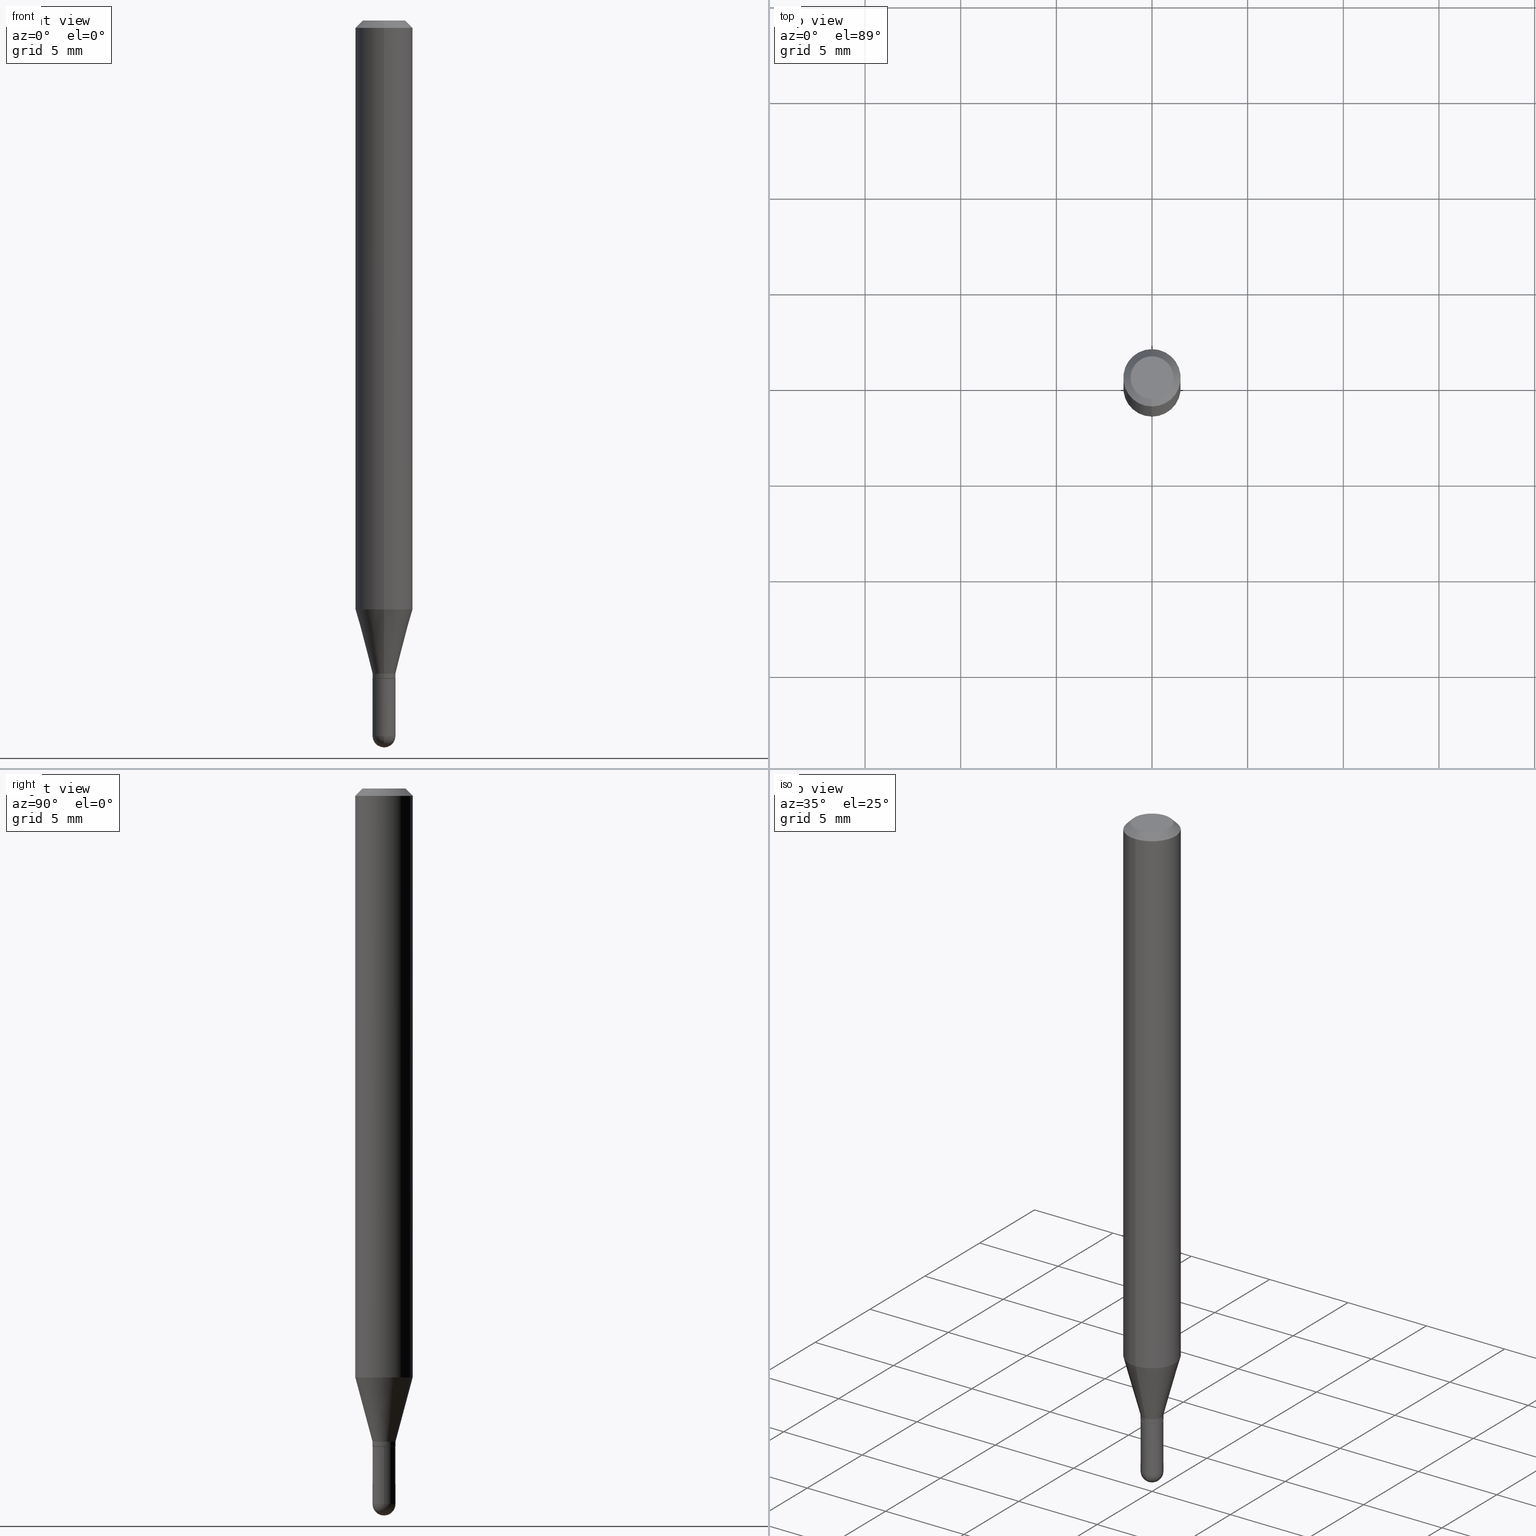
[diagram: canonical four-view strip — front | top / right | iso, engineering-drawing reading convention]
A machine part, canonical four-view strip (front | top / right | iso — engineering-drawing reading convention). The complete STEP part file that produces these views, byte-faithful:
ISO-10303-21;
HEADER;
FILE_DESCRIPTION (( 'STEP AP203' ),
    '1' );
FILE_NAME ('02941.STEP',
    '2024-03-07T21:54:32',
    ( '' ),
    ( '' ),
    'SwSTEP 2.0',
    'SolidWorks 2023',
    '' );
FILE_SCHEMA (( 'CONFIG_CONTROL_DESIGN' ));
ENDSEC;

DATA;
#1 = LINE ( 'NONE', #119, #94 ) ;
#2 = EDGE_CURVE ( 'NONE', #177, #430, #26, .T. ) ;
#3 = AXIS2_PLACEMENT_3D ( 'NONE', #253, #466, #259 ) ;
#4 = DIRECTION ( 'NONE',  ( 5.024295867788190974E-15, 0.7071067811865681119, 0.7071067811865270336 ) ) ;
#5 = DATE_AND_TIME ( #452, #183 ) ;
#6 = DIRECTION ( 'NONE',  ( 1.000000000000000000, -6.982962677686267499E-15, 4.876176775795935793E-29 ) ) ;
#7 = DIRECTION ( 'NONE',  ( 2.445403612835547788E-29, -3.491574699430331194E-15, -1.000000000000000000 ) ) ;
#8 = DIRECTION ( 'NONE',  ( -2.445403612835548349E-29, 3.491574699430331194E-15, 1.000000000000000000 ) ) ;
#9 = CARTESIAN_POINT ( 'NONE',  ( 4.195754854663390985E-16, 0.05904999999999999832, -2.061774860013610647E-16 ) ) ;
#10 = CYLINDRICAL_SURFACE ( 'NONE', #27, 0.02359999999999999598 ) ;
#11 = ORIENTED_EDGE ( 'NONE', *, *, #429, .F. ) ;
#12 = CIRCLE ( 'NONE', #217, 0.02359999999999999598 ) ;
#13 = APPROVAL_PERSON_ORGANIZATION ( #289, #269, #60 ) ;
#14 = MANIFOLD_SOLID_BREP ( 'Body-Move/Copy2[1]', #173 ) ;
#15 = DIRECTION ( 'NONE',  ( -2.445403612835548349E-29, 3.491574699430331194E-15, 1.000000000000000000 ) ) ;
#16 = ORIENTED_EDGE ( 'NONE', *, *, #243, .F. ) ;
#17 = EDGE_CURVE ( 'NONE', #465, #148, #30, .T. ) ;
#18 = PERSON_AND_ORGANIZATION_ROLE ( 'classification_officer' ) ;
#19 = AXIS2_PLACEMENT_3D ( 'NONE', #192, #346, #439 ) ;
#20 = CARTESIAN_POINT ( 'NONE',  ( -1.647979191933643482E-16, -0.02360000000000488443, -1.344100000000000072 ) ) ;
#21 = ORIENTED_EDGE ( 'NONE', *, *, #462, .F. ) ;
#22 = DATE_AND_TIME ( #91, #111 ) ;
#23 = DIRECTION ( 'NONE',  ( -2.445403612835547788E-29, 3.491574699430331194E-15, 1.000000000000000000 ) ) ;
#24 = CARTESIAN_POINT ( 'NONE',  ( 3.599717260347271507E-16, 0.04404999999999999888, -2.454645658922201879E-16 ) ) ;
#25 = VERTEX_POINT ( 'NONE', #298 ) ;
#26 = LINE ( 'NONE', #389, #477 ) ;
#27 = AXIS2_PLACEMENT_3D ( 'NONE', #247, #171, #208 ) ;
#28 = ORIENTED_EDGE ( 'NONE', *, *, #456, .F. ) ;
#29 = EDGE_LOOP ( 'NONE', ( #344, #424, #422, #505 ) ) ;
#30 = LINE ( 'NONE', #184, #65 ) ;
#31 = EDGE_LOOP ( 'NONE', ( #152, #387 ) ) ;
#32 = DIRECTION ( 'NONE',  ( 1.000000000000000000, -7.105427357601001070E-15, 4.926315508542082329E-29 ) ) ;
#33 = DIRECTION ( 'NONE',  ( -6.982962677686265922E-15, -1.000000000000000000, 0.000000000000000000 ) ) ;
#34 = EDGE_CURVE ( 'NONE', #340, #148, #321, .T. ) ;
#35 = VERTEX_POINT ( 'NONE', #331 ) ;
#36 = DIRECTION ( 'NONE',  ( 1.000000000000000000, -6.982962677686265922E-15, 4.883557194083112901E-29 ) ) ;
#37 = AXIS2_PLACEMENT_3D ( 'NONE', #56, #23, #226 ) ;
#38 = ORIENTED_EDGE ( 'NONE', *, *, #286, .T. ) ;
#39 = APPROVAL_ROLE ( '' ) ;
#40 = CARTESIAN_POINT ( 'NONE',  ( 3.668105419253344629E-31, -5.237362049145528666E-17, -0.01500000000000009139 ) ) ;
#41 = CARTESIAN_POINT ( 'NONE',  ( 4.195754854663689766E-16, 0.05904999999999995669, -0.01500000000000029955 ) ) ;
#42 = EDGE_CURVE ( 'NONE', #463, #90, #329, .T. ) ;
#43 = CARTESIAN_POINT ( 'NONE',  ( 3.312142951097148704E-29, -4.728862325329155827E-15, -1.354399999999999826 ) ) ;
#44 = PERSON_AND_ORGANIZATION_ROLE ( 'design_owner' ) ;
#45 = AXIS2_PLACEMENT_3D ( 'NONE', #323, #8, #88 ) ;
#46 = AXIS2_PLACEMENT_3D ( 'NONE', #80, #358, #480 ) ;
#47 = DIRECTION ( 'NONE',  ( -2.445468806185136877E-29, 3.491481338843145188E-15, 1.000000000000000000 ) ) ;
#48 = CARTESIAN_POINT ( 'NONE',  ( 3.312054653224466865E-29, -4.728988772908441587E-15, -1.354400000000000270 ) ) ;
#49 = DIRECTION ( 'NONE',  ( -6.982962677686265922E-15, -1.000000000000000000, 4.626330217890369336E-15 ) ) ;
#50 = ADVANCED_FACE ( 'NONE', ( #97 ), #444, .T. ) ;
#51 = DIRECTION ( 'NONE',  ( -2.445468806185136597E-29, 3.491481338843145583E-15, 1.000000000000000000 ) ) ;
#52 = AXIS2_PLACEMENT_3D ( 'NONE', #473, #36, #237 ) ;
#53 = LOCAL_TIME ( 16, 54, 32.00000000000000000, #221 ) ;
#54 = CARTESIAN_POINT ( 'NONE',  ( -1.647979191933643482E-16, -0.02360000000000488443, -1.344100000000000072 ) ) ;
#55 = EDGE_CURVE ( 'NONE', #187, #469, #467, .T. ) ;
#56 = CARTESIAN_POINT ( 'NONE',  ( 3.312054653224466865E-29, -4.728988772908441587E-15, -1.354400000000000270 ) ) ;
#57 = AXIS2_PLACEMENT_3D ( 'NONE', #161, #32, #400 ) ;
#58 = DIRECTION ( 'NONE',  ( -6.982962677686265922E-15, -1.000000000000000000, 0.000000000000000000 ) ) ;
#59 = EDGE_CURVE ( 'NONE', #228, #465, #98, .T. ) ;
#60 = APPROVAL_ROLE ( '' ) ;
#61 = CARTESIAN_POINT ( 'NONE',  ( 3.286866996012259774E-29, -4.693025553504308353E-15, -1.344100000000000072 ) ) ;
#62 = ORIENTED_EDGE ( 'NONE', *, *, #363, .F. ) ;
#63 = ORIENTED_EDGE ( 'NONE', *, *, #278, .F. ) ;
#64 = DIRECTION ( 'NONE',  ( -6.982962677686265922E-15, -1.000000000000000000, 0.000000000000000000 ) ) ;
#65 = VECTOR ( 'NONE', #504, 39.37007874015748143 ) ;
#66 = PRODUCT_DEFINITION_FORMATION_WITH_SPECIFIED_SOURCE ( 'ANY', '', #384, .NOT_KNOWN. ) ;
#67 = EDGE_LOOP ( 'NONE', ( #11, #181, #380, #62 ) ) ;
#68 = COORDINATED_UNIVERSAL_TIME_OFFSET ( 5, 0, .BEHIND. ) ;
#69 = CARTESIAN_POINT ( 'NONE',  ( 3.310831951418048795E-29, -4.727242985558725064E-15, -1.353900000000000103 ) ) ;
#70 = CC_DESIGN_PERSON_AND_ORGANIZATION_ASSIGNMENT ( #335, #376, ( #66 ) ) ;
#71 = ORIENTED_EDGE ( 'NONE', *, *, #2, .F. ) ;
#72 = DIRECTION ( 'NONE',  ( 1.000000000000000000, -6.982962677686259611E-15, 0.000000000000000000 ) ) ;
#73 = SPHERICAL_SURFACE ( 'NONE', #52, 0.02359999999999999598 ) ;
#74 = VERTEX_POINT ( 'NONE', #24 ) ;
#75 = LINE ( 'NONE', #472, #265 ) ;
#76 = CYLINDRICAL_SURFACE ( 'NONE', #249, 0.05904999999999999832 ) ;
#77 = AXIS2_PLACEMENT_3D ( 'NONE', #454, #129, #89 ) ;
#78 = ADVANCED_FACE ( 'NONE', ( #232 ), #159, .T. ) ;
#79 = DIRECTION ( 'NONE',  ( -2.445468806185136597E-29, 3.491481338843145583E-15, 1.000000000000000000 ) ) ;
#80 = CARTESIAN_POINT ( 'NONE',  ( 0.000000000000000000, 0.000000000000000000, 0.000000000000000000 ) ) ;
#81 = FACE_OUTER_BOUND ( 'NONE', #230, .T. ) ;
#82 = DIRECTION ( 'NONE',  ( 6.982962677686265922E-15, 1.000000000000000000, -3.491574699430331194E-15 ) ) ;
#83 = SPHERICAL_SURFACE ( 'NONE', #498, 0.02359999999999999598 ) ;
#84 = CIRCLE ( 'NONE', #77, 0.02359999999999999598 ) ;
#85 = LENGTH_MEASURE_WITH_UNIT ( LENGTH_MEASURE( 0.02539999999999999897 ), #124 );
#86 = ADVANCED_FACE ( 'NONE', ( #512 ), #162, .T. ) ;
#87 = CARTESIAN_POINT ( 'NONE',  ( 0.000000000000000000, 0.000000000000000000, 0.000000000000000000 ) ) ;
#88 = DIRECTION ( 'NONE',  ( -6.982962677686265922E-15, -1.000000000000000000, 3.491574699430331194E-15 ) ) ;
#89 = DIRECTION ( 'NONE',  ( 1.000000000000000000, -6.982962677686259611E-15, 0.000000000000000000 ) ) ;
#90 = VERTEX_POINT ( 'NONE', #276 ) ;
#91 = CALENDAR_DATE ( 2024, 7, 3 ) ;
#92 = EDGE_CURVE ( 'NONE', #25, #430, #245, .T. ) ;
#93 = CIRCLE ( 'NONE', #322, 0.02359999999999999598 ) ;
#94 = VECTOR ( 'NONE', #108, 39.37007874015748143 ) ;
#95 = UNCERTAINTY_MEASURE_WITH_UNIT (LENGTH_MEASURE( 1.000000000000000082E-05 ), #364, 'distance_accuracy_value', 'NONE');
#96 = DIRECTION ( 'NONE',  ( -2.445403612835548349E-29, 3.491574699430331194E-15, 1.000000000000000000 ) ) ;
#97 = FACE_OUTER_BOUND ( 'NONE', #297, .T. ) ;
#98 = CIRCLE ( 'NONE', #275, 0.02360000000000019374 ) ;
#99 = CONICAL_SURFACE ( 'NONE', #359, 0.05904999999999999832, 0.7853981633974483900 ) ;
#100 = DIRECTION ( 'NONE',  ( -2.445468806185136877E-29, 3.491481338843145188E-15, 1.000000000000000000 ) ) ;
#101 = CALENDAR_DATE ( 2024, 7, 3 ) ;
#102 = EDGE_LOOP ( 'NONE', ( #461, #382, #450, #307 ) ) ;
#103 = ORIENTED_EDGE ( 'NONE', *, *, #372, .F. ) ;
#104 = ORIENTED_EDGE ( 'NONE', *, *, #485, .F. ) ;
#105 = VERTEX_POINT ( 'NONE', #123 ) ;
#106 = ORIENTED_EDGE ( 'NONE', *, *, #462, .T. ) ;
#107 = ADVANCED_FACE ( 'NONE', ( #120 ), #83, .T. ) ;
#108 = DIRECTION ( 'NONE',  ( 4.937700262164548042E-15, 0.7071067811865451302, -0.7071067811865499042 ) ) ;
#109 = AXIS2_PLACEMENT_3D ( 'NONE', #241, #197, #274 ) ;
#110 = AXIS2_PLACEMENT_3D ( 'NONE', #470, #345, #122 ) ;
#111 = LOCAL_TIME ( 16, 54, 32.00000000000000000, #500 ) ;
#112 = ORIENTED_EDGE ( 'NONE', *, *, #246, .T. ) ;
#113 = LINE ( 'NONE', #9, #135 ) ;
#114 = DIRECTION ( 'NONE',  ( -2.445403612835548349E-29, 3.491574699430331194E-15, 1.000000000000000000 ) ) ;
#115 = ORIENTED_EDGE ( 'NONE', *, *, #55, .T. ) ;
#116 = DIRECTION ( 'NONE',  ( -2.445403612835548349E-29, 3.491574699430331194E-15, 1.000000000000000000 ) ) ;
#117 = CARTESIAN_POINT ( 'NONE',  ( 2.241474078699475679E-45, -3.200401823869518620E-31, -9.166070038231407088E-17 ) ) ;
#118 = ADVANCED_FACE ( 'NONE', ( #442 ), #483, .T. ) ;
#119 = CARTESIAN_POINT ( 'NONE',  ( 4.123439461173743285E-16, 0.05904999999999994975, -0.01500000000000029955 ) ) ;
#120 = FACE_OUTER_BOUND ( 'NONE', #67, .T. ) ;
#121 = AXIS2_PLACEMENT_3D ( 'NONE', #215, #420, #64 ) ;
#122 = DIRECTION ( 'NONE',  ( -6.982962677686266711E-15, -1.000000000000000000, 0.000000000000000000 ) ) ;
#123 = CARTESIAN_POINT ( 'NONE',  ( -4.123439461173736383E-16, -0.05905000000000005383, -0.01499999999999988495 ) ) ;
#124 =( LENGTH_UNIT ( ) NAMED_UNIT ( * ) SI_UNIT ( $, .METRE. ) );
#125 = CC_DESIGN_DATE_AND_TIME_ASSIGNMENT ( #136, #288, ( #198 ) ) ;
#126 = DIRECTION ( 'NONE',  ( -6.982962677686265922E-15, -1.000000000000000000, 3.505890868245046092E-15 ) ) ;
#127 = CIRCLE ( 'NONE', #328, 0.05904999999999999832 ) ;
#128 = ORGANIZATION ( 'UNSPECIFIED', 'UNSPECIFIED', '' ) ;
#129 = DIRECTION ( 'NONE',  ( -2.445468806185136597E-29, 3.491481338843145583E-15, 1.000000000000000000 ) ) ;
#130 = CARTESIAN_POINT ( 'NONE',  ( 0.000000000000000000, 0.000000000000000000, 0.000000000000000000 ) ) ;
#131 = EDGE_LOOP ( 'NONE', ( #408, #270, #341, #282 ) ) ;
#132 = ADVANCED_FACE ( 'NONE', ( #507 ), #76, .T. ) ;
#133 = COORDINATED_UNIVERSAL_TIME_OFFSET ( 5, 0, .BEHIND. ) ;
#134 = CIRCLE ( 'NONE', #109, 0.04404999999999999888 ) ;
#135 = VECTOR ( 'NONE', #367, 39.37007874015748143 ) ;
#136 = DATE_AND_TIME ( #101, #255 ) ;
#137 = ORIENTED_EDGE ( 'NONE', *, *, #59, .T. ) ;
#138 = CARTESIAN_POINT ( 'NONE',  ( -4.123439461173444997E-16, -0.05905000000000425187, -1.211798798871684513 ) ) ;
#139 = EDGE_CURVE ( 'NONE', #193, #74, #263, .T. ) ;
#140 = ORIENTED_EDGE ( 'NONE', *, *, #490, .T. ) ;
#141 = SECURITY_CLASSIFICATION_LEVEL ( 'unclassified' ) ;
#142 = ORIENTED_EDGE ( 'NONE', *, *, #485, .T. ) ;
#143 = CIRCLE ( 'NONE', #433, 0.02360000000000019721 ) ;
#144 = AXIS2_PLACEMENT_3D ( 'NONE', #506, #391, #149 ) ;
#145 = ORIENTED_EDGE ( 'NONE', *, *, #441, .T. ) ;
#146 = ADVANCED_FACE ( 'NONE', ( #351 ), #73, .T. ) ;
#147 = EDGE_LOOP ( 'NONE', ( #28, #115, #145, #258 ) ) ;
#148 = VERTEX_POINT ( 'NONE', #309 ) ;
#149 = DIRECTION ( 'NONE',  ( 6.982962677686265922E-15, 1.000000000000000000, -3.505890868245046092E-15 ) ) ;
#150 = AXIS2_PLACEMENT_3D ( 'NONE', #301, #417, #457 ) ;
#151 = CARTESIAN_POINT ( 'NONE',  ( 0.000000000000000000, 0.000000000000000000, 0.000000000000000000 ) ) ;
#152 = ORIENTED_EDGE ( 'NONE', *, *, #154, .T. ) ;
#153 = DIRECTION ( 'NONE',  ( -2.445468806185136597E-29, 3.491481338843145583E-15, 1.000000000000000000 ) ) ;
#154 = EDGE_CURVE ( 'NONE', #74, #193, #134, .T. ) ;
#155 = DIRECTION ( 'NONE',  ( -2.445468806185136597E-29, 3.491481338843145583E-15, 1.000000000000000000 ) ) ;
#156 = CARTESIAN_POINT ( 'NONE',  ( 1.676880856393849958E-16, 0.02360000000000019374, -8.240116290655649517E-17 ) ) ;
#157 = CARTESIAN_POINT ( 'NONE',  ( -1.647979191933598616E-16, -0.02360000000000513770, -1.472499999999999698 ) ) ;
#158 = FACE_OUTER_BOUND ( 'NONE', #272, .T. ) ;
#159 = CYLINDRICAL_SURFACE ( 'NONE', #182, 0.02359999999999999598 ) ;
#160 = CIRCLE ( 'NONE', #166, 0.05904999999999999832 ) ;
#161 = CARTESIAN_POINT ( 'NONE',  ( 3.598934624665149250E-29, -5.144096437892519397E-15, -1.472499999999999920 ) ) ;
#162 = CYLINDRICAL_SURFACE ( 'NONE', #46, 0.05904999999999999832 ) ;
#163 = CC_DESIGN_PERSON_AND_ORGANIZATION_ASSIGNMENT ( #240, #449, ( #204 ) ) ;
#164 = DIRECTION ( 'NONE',  ( -2.445403612835548629E-29, 3.491574699430331194E-15, 1.000000000000000000 ) ) ;
#165 = LINE ( 'NONE', #248, #377 ) ;
#166 = AXIS2_PLACEMENT_3D ( 'NONE', #40, #200, #354 ) ;
#167 = CIRCLE ( 'NONE', #57, 0.02359999999999999598 ) ;
#168 =( NAMED_UNIT ( * ) PLANE_ANGLE_UNIT ( ) SI_UNIT ( $, .RADIAN. ) );
#169 = CARTESIAN_POINT ( 'NONE',  ( 0.02359999999999999598, -5.099832217581239141E-15, -1.472499999999999698 ) ) ;
#170 = EDGE_CURVE ( 'NONE', #460, #105, #160, .T. ) ;
#171 = DIRECTION ( 'NONE',  ( -2.445468806185136597E-29, 3.491481338843145583E-15, 1.000000000000000000 ) ) ;
#172 = CYLINDRICAL_SURFACE ( 'NONE', #254, 0.02360000000000019374 ) ;
#173 = CLOSED_SHELL ( 'NONE', ( #78, #146, #447, #107, #293 ) ) ;
#174 = VERTEX_POINT ( 'NONE', #157 ) ;
#175 = APPROVAL ( #256, 'UNSPECIFIED' ) ;
#176 = DIRECTION ( 'NONE',  ( -1.807323732225332900E-15, -0.2588190451025185190, 0.9659258262890689783 ) ) ;
#177 = VERTEX_POINT ( 'NONE', #312 ) ;
#178 = APPROVAL_DATE_TIME ( #22, #269 ) ;
#179 = MECHANICAL_CONTEXT ( 'NONE', #412, 'mechanical' ) ;
#180 = ORIENTED_EDGE ( 'NONE', *, *, #207, .T. ) ;
#181 = ORIENTED_EDGE ( 'NONE', *, *, #320, .T. ) ;
#182 = AXIS2_PLACEMENT_3D ( 'NONE', #151, #155, #6 ) ;
#183 = LOCAL_TIME ( 16, 54, 32.00000000000000000, #133 ) ;
#184 = CARTESIAN_POINT ( 'NONE',  ( 1.676880856394178568E-16, 0.02359999999999550305, -1.344100000000000072 ) ) ;
#185 = ADVANCED_FACE ( 'NONE', ( #476 ), #402, .T. ) ;
#186 = ORIENTED_EDGE ( 'NONE', *, *, #42, .T. ) ;
#187 = VERTEX_POINT ( 'NONE', #368 ) ;
#188 = VERTEX_POINT ( 'NONE', #169 ) ;
#189 = ADVANCED_BREP_SHAPE_REPRESENTATION ( '02941', ( #14, #360, #434 ), #277 ) ;
#190 = CARTESIAN_POINT ( 'NONE',  ( -0.02360000000000000292, -4.767346212748459573E-15, -1.354399999999999826 ) ) ;
#191 = APPROVAL_STATUS ( 'not_yet_approved' ) ;
#192 = CARTESIAN_POINT ( 'NONE',  ( 3.286866996012259774E-29, -4.693025553504308353E-15, -1.344100000000000072 ) ) ;
#193 = VERTEX_POINT ( 'NONE', #287 ) ;
#194 = CARTESIAN_POINT ( 'NONE',  ( 3.286866996012259774E-29, -4.693025553504308353E-15, -1.344100000000000072 ) ) ;
#195 = VECTOR ( 'NONE', #164, 39.37007874015748143 ) ;
#196 = APPLICATION_PROTOCOL_DEFINITION ( 'international standard', 'config_control_design', 1994, #393 ) ;
#197 = DIRECTION ( 'NONE',  ( -2.445403612835548349E-29, 3.491574699430331194E-15, 1.000000000000000000 ) ) ;
#198 = SECURITY_CLASSIFICATION ( '', '', #141 ) ;
#199 = DIRECTION ( 'NONE',  ( -2.445403612835548629E-29, 3.491574699430331194E-15, 1.000000000000000000 ) ) ;
#200 = DIRECTION ( 'NONE',  ( -2.445403612835548349E-29, 3.491574699430331194E-15, 1.000000000000000000 ) ) ;
#201 = DIRECTION ( 'NONE',  ( -6.982962677686265922E-15, -1.000000000000000000, 0.000000000000000000 ) ) ;
#202 = CARTESIAN_POINT ( 'NONE',  ( -1.613064378545196401E-16, -0.02310000000000472786, -1.354400000000000270 ) ) ;
#203 = PERSON_AND_ORGANIZATION ( #302, #128 ) ;
#204 = PRODUCT_DEFINITION ( 'UNKNOWN', '', #66, #410 ) ;
#205 = APPLICATION_PROTOCOL_DEFINITION ( 'international standard', 'config_control_design', 1994, #412 ) ;
#206 = DIRECTION ( 'NONE',  ( -4.937700262164674260E-15, -0.7071067811865632269, 0.7071067811865319186 ) ) ;
#207 = EDGE_CURVE ( 'NONE', #174, #188, #12, .T. ) ;
#208 = DIRECTION ( 'NONE',  ( 1.000000000000000000, -6.982962677686267499E-15, 4.876176775795935793E-29 ) ) ;
#209 = CIRCLE ( 'NONE', #296, 0.05904999999999999832 ) ;
#210 = LOCAL_TIME ( 16, 54, 32.00000000000000000, #68 ) ;
#211 = DIRECTION ( 'NONE',  ( 1.000000000000000000, -6.982962677686259611E-15, 0.000000000000000000 ) ) ;
#212 = EDGE_LOOP ( 'NONE', ( #385, #262, #503, #419, #222 ) ) ;
#213 = APPROVAL_DATE_TIME ( #409, #175 ) ;
#214 = CARTESIAN_POINT ( 'NONE',  ( 2.963337160790595870E-29, -4.231086026940438295E-15, -1.211798798871684735 ) ) ;
#215 = CARTESIAN_POINT ( 'NONE',  ( 3.598934624665149250E-29, -5.144096437892519397E-15, -1.472499999999999920 ) ) ;
#216 = CC_DESIGN_PERSON_AND_ORGANIZATION_ASSIGNMENT ( #326, #18, ( #198 ) ) ;
#217 = AXIS2_PLACEMENT_3D ( 'NONE', #411, #51, #211 ) ;
#218 = AXIS2_PLACEMENT_3D ( 'NONE', #357, #231, #308 ) ;
#219 = CARTESIAN_POINT ( 'NONE',  ( 2.963337160790595870E-29, -4.231086026940438295E-15, -1.211798798871684735 ) ) ;
#220 = ORIENTED_EDGE ( 'NONE', *, *, #394, .T. ) ;
#221 = COORDINATED_UNIVERSAL_TIME_OFFSET ( 5, 0, .BEHIND. ) ;
#222 = ORIENTED_EDGE ( 'NONE', *, *, #278, .T. ) ;
#223 = EDGE_CURVE ( 'NONE', #340, #105, #489, .T. ) ;
#224 = ORIENTED_EDGE ( 'NONE', *, *, #320, .F. ) ;
#225 = CLOSED_SHELL ( 'NONE', ( #313, #50, #479, #86, #118, #406, #132, #386, #497, #325, #185, #233 ) ) ;
#226 = DIRECTION ( 'NONE',  ( -6.982962677686265922E-15, -1.000000000000000000, 3.491574699430331194E-15 ) ) ;
#227 = CC_DESIGN_APPROVAL ( #251, ( #204 ) ) ;
#228 = VERTEX_POINT ( 'NONE', #54 ) ;
#229 = SHAPE_DEFINITION_REPRESENTATION ( #294, #189 ) ;
#230 = EDGE_LOOP ( 'NONE', ( #383, #112, #260, #292 ) ) ;
#231 = DIRECTION ( 'NONE',  ( -2.445468806185136597E-29, 3.491481338843145583E-15, 1.000000000000000000 ) ) ;
#232 = FACE_OUTER_BOUND ( 'NONE', #212, .T. ) ;
#233 = ADVANCED_FACE ( 'NONE', ( #448 ), #318, .T. ) ;
#234 = EDGE_LOOP ( 'NONE', ( #299, #21 ) ) ;
#235 = CARTESIAN_POINT ( 'NONE',  ( 1.641353719606162434E-16, 0.02309999999999527015, -1.354400000000000270 ) ) ;
#236 = AXIS2_PLACEMENT_3D ( 'NONE', #48, #96, #407 ) ;
#237 = DIRECTION ( 'NONE',  ( -6.982962677686265922E-15, -1.000000000000000000, 0.000000000000000000 ) ) ;
#238 = AXIS2_PLACEMENT_3D ( 'NONE', #446, #7, #82 ) ;
#239 = DIRECTION ( 'NONE',  ( 2.445403612835548349E-29, -3.491574699430331194E-15, -1.000000000000000000 ) ) ;
#240 = PERSON_AND_ORGANIZATION ( #302, #128 ) ;
#241 = CARTESIAN_POINT ( 'NONE',  ( 2.241474078699475679E-45, -3.200401823869518620E-31, -9.166070038231407088E-17 ) ) ;
#242 = DIRECTION ( 'NONE',  ( -6.982962677686265922E-15, -1.000000000000000000, 0.000000000000000000 ) ) ;
#243 = EDGE_CURVE ( 'NONE', #105, #460, #127, .T. ) ;
#244 = CARTESIAN_POINT ( 'NONE',  ( 3.598934624665149250E-29, -5.144096437892519397E-15, -1.472499999999999920 ) ) ;
#245 = CIRCLE ( 'NONE', #283, 0.02360000000000000292 ) ;
#246 = EDGE_CURVE ( 'NONE', #465, #228, #347, .T. ) ;
#247 = CARTESIAN_POINT ( 'NONE',  ( 0.000000000000000000, 0.000000000000000000, 0.000000000000000000 ) ) ;
#248 = CARTESIAN_POINT ( 'NONE',  ( -1.613064378545196401E-16, -0.02310000000000472786, -1.354400000000000270 ) ) ;
#249 = AXIS2_PLACEMENT_3D ( 'NONE', #306, #114, #268 ) ;
#250 = CIRCLE ( 'NONE', #403, 0.02360000000000000292 ) ;
#251 = APPROVAL ( #191, 'UNSPECIFIED' ) ;
#252 = PLANE ( 'NONE',  #37 ) ;
#253 = CARTESIAN_POINT ( 'NONE',  ( 3.312054653224466865E-29, -4.728988772908441587E-15, -1.354400000000000270 ) ) ;
#254 = AXIS2_PLACEMENT_3D ( 'NONE', #130, #324, #488 ) ;
#255 = LOCAL_TIME ( 16, 54, 32.00000000000000000, #295 ) ;
#256 = APPROVAL_STATUS ( 'not_yet_approved' ) ;
#257 = EDGE_CURVE ( 'NONE', #148, #340, #209, .T. ) ;
#258 = ORIENTED_EDGE ( 'NONE', *, *, #246, .F. ) ;
#259 = DIRECTION ( 'NONE',  ( -6.982962677686266711E-15, -1.000000000000000000, 0.000000000000000000 ) ) ;
#260 = ORIENTED_EDGE ( 'NONE', *, *, #333, .T. ) ;
#261 = DIRECTION ( 'NONE',  ( -2.445403612835548349E-29, 3.491574699430331194E-15, 1.000000000000000000 ) ) ;
#262 = ORIENTED_EDGE ( 'NONE', *, *, #2, .T. ) ;
#263 = CIRCLE ( 'NONE', #395, 0.04404999999999999888 ) ;
#264 = FACE_OUTER_BOUND ( 'NONE', #29, .T. ) ;
#265 = VECTOR ( 'NONE', #355, 39.37007874015748143 ) ;
#266 = ORIENTED_EDGE ( 'NONE', *, *, #353, .F. ) ;
#267 = LINE ( 'NONE', #156, #459 ) ;
#268 = DIRECTION ( 'NONE',  ( -6.982962677686265922E-15, -1.000000000000000000, 3.491574699430331588E-15 ) ) ;
#269 = APPROVAL ( #332, 'UNSPECIFIED' ) ;
#270 = ORIENTED_EDGE ( 'NONE', *, *, #154, .F. ) ;
#271 = LINE ( 'NONE', #431, #453 ) ;
#272 = EDGE_LOOP ( 'NONE', ( #487, #496 ) ) ;
#273 = PERSON_AND_ORGANIZATION ( #302, #128 ) ;
#274 = DIRECTION ( 'NONE',  ( -6.982962677686265133E-15, -1.000000000000000000, 3.491574699430331194E-15 ) ) ;
#275 = AXIS2_PLACEMENT_3D ( 'NONE', #61, #413, #58 ) ;
#276 = CARTESIAN_POINT ( 'NONE',  ( 1.659117288000171610E-16, 0.02309999999999527015, -1.354400000000000270 ) ) ;
#277 =( GEOMETRIC_REPRESENTATION_CONTEXT ( 3 ) GLOBAL_UNCERTAINTY_ASSIGNED_CONTEXT ( ( #95 ) ) GLOBAL_UNIT_ASSIGNED_CONTEXT ( ( #364, #168, #443 ) ) REPRESENTATION_CONTEXT ( 'NONE', 'WORKASPACE' ) );
#278 = EDGE_CURVE ( 'NONE', #188, #291, #84, .T. ) ;
#279 = LINE ( 'NONE', #235, #314 ) ;
#280 = VECTOR ( 'NONE', #47, 39.37007874015748143 ) ;
#281 = FACE_OUTER_BOUND ( 'NONE', #390, .T. ) ;
#282 = ORIENTED_EDGE ( 'NONE', *, *, #170, .T. ) ;
#283 = AXIS2_PLACEMENT_3D ( 'NONE', #317, #399, #392 ) ;
#284 = PERSON_AND_ORGANIZATION ( #302, #128 ) ;
#285 = CONICAL_SURFACE ( 'NONE', #144, 0.05904999999999999832, 0.7853981633974483900 ) ;
#286 = EDGE_CURVE ( 'NONE', #463, #469, #165, .T. ) ;
#287 = CARTESIAN_POINT ( 'NONE',  ( -3.536586717851222218E-16, -0.04404999999999999888, 6.214316512759200918E-17 ) ) ;
#288 = DATE_TIME_ROLE ( 'classification_date' ) ;
#289 = PERSON_AND_ORGANIZATION ( #302, #128 ) ;
#290 = DATE_TIME_ROLE ( 'creation_date' ) ;
#291 = VERTEX_POINT ( 'NONE', #365 ) ;
#292 = ORIENTED_EDGE ( 'NONE', *, *, #257, .F. ) ;
#293 = ADVANCED_FACE ( 'NONE', ( #281 ), #10, .T. ) ;
#294 = PRODUCT_DEFINITION_SHAPE ( 'NONE', 'NONE',  #204 ) ;
#295 = COORDINATED_UNIVERSAL_TIME_OFFSET ( 5, 0, .BEHIND. ) ;
#296 = AXIS2_PLACEMENT_3D ( 'NONE', #214, #327, #49 ) ;
#297 = EDGE_LOOP ( 'NONE', ( #186, #501, #342, #300 ) ) ;
#298 = CARTESIAN_POINT ( 'NONE',  ( 0.02360000000000000292, -4.893660244522551286E-15, -1.354399999999999826 ) ) ;
#299 = ORIENTED_EDGE ( 'NONE', *, *, #42, .F. ) ;
#300 = ORIENTED_EDGE ( 'NONE', *, *, #286, .F. ) ;
#301 = CARTESIAN_POINT ( 'NONE',  ( 3.312054653224466865E-29, -4.728988772908441587E-15, -1.354400000000000270 ) ) ;
#302 = PERSON ( 'UNSPECIFIED', 'UNSPECIFIED', 'UNSPECIFIED', ('UNSPECIFIED'), ('UNSPECIFIED'), ('UNSPECIFIED') ) ;
#303 = AXIS2_PLACEMENT_3D ( 'NONE', #374, #15, #445 ) ;
#304 = ORIENTED_EDGE ( 'NONE', *, *, #333, .F. ) ;
#305 = CC_DESIGN_DATE_AND_TIME_ASSIGNMENT ( #5, #290, ( #204 ) ) ;
#306 = CARTESIAN_POINT ( 'NONE',  ( 0.000000000000000000, 0.000000000000000000, 0.000000000000000000 ) ) ;
#307 = ORIENTED_EDGE ( 'NONE', *, *, #441, .F. ) ;
#308 = DIRECTION ( 'NONE',  ( 1.000000000000000000, -6.982962677686259611E-15, 0.000000000000000000 ) ) ;
#309 = CARTESIAN_POINT ( 'NONE',  ( 4.195754854663685822E-16, 0.05904999999999573784, -1.211798798871684735 ) ) ;
#310 = DIRECTION ( 'NONE',  ( -2.445403612835548629E-29, 3.491574699430331194E-15, 1.000000000000000000 ) ) ;
#311 = CALENDAR_DATE ( 2024, 7, 3 ) ;
#312 = CARTESIAN_POINT ( 'NONE',  ( -0.02359999999999999598, -4.767346212748459573E-15, -1.472499999999999698 ) ) ;
#313 = ADVANCED_FACE ( 'NONE', ( #486 ), #172, .T. ) ;
#314 = VECTOR ( 'NONE', #4, 39.37007874015748143 ) ;
#315 = CC_DESIGN_APPROVAL ( #269, ( #66 ) ) ;
#316 = CARTESIAN_POINT ( 'NONE',  ( 2.936317855528934537E-16, 0.02359999999999549958, -1.344100000000000072 ) ) ;
#317 = CARTESIAN_POINT ( 'NONE',  ( 3.312142951097148704E-29, -4.728862325329155827E-15, -1.354399999999999826 ) ) ;
#318 = CYLINDRICAL_SURFACE ( 'NONE', #45, 0.02360000000000019374 ) ;
#319 = CARTESIAN_POINT ( 'NONE',  ( 0.02359999999999999598, -1.647979191933958780E-16, 1.150777719087840605E-30 ) ) ;
#320 = EDGE_CURVE ( 'NONE', #35, #174, #414, .T. ) ;
#321 = CIRCLE ( 'NONE', #423, 0.05904999999999999832 ) ;
#322 = AXIS2_PLACEMENT_3D ( 'NONE', #427, #153, #72 ) ;
#323 = CARTESIAN_POINT ( 'NONE',  ( 0.000000000000000000, 0.000000000000000000, 0.000000000000000000 ) ) ;
#324 = DIRECTION ( 'NONE',  ( -2.445403612835548349E-29, 3.491574699430331194E-15, 1.000000000000000000 ) ) ;
#325 = ADVANCED_FACE ( 'NONE', ( #491 ), #252, .F. ) ;
#326 = PERSON_AND_ORGANIZATION ( #302, #128 ) ;
#327 = DIRECTION ( 'NONE',  ( -2.445403612835548349E-29, 3.491574699430331194E-15, 1.000000000000000000 ) ) ;
#328 = AXIS2_PLACEMENT_3D ( 'NONE', #481, #371, #126 ) ;
#329 = CIRCLE ( 'NONE', #150, 0.02309999999999999901 ) ;
#330 = CONICAL_SURFACE ( 'NONE', #397, 0.02360000000000019374, 0.2617993877991506291 ) ;
#331 = CARTESIAN_POINT ( 'NONE',  ( 3.655638592269886826E-29, -5.227940480712210662E-15, -1.496099999999999985 ) ) ;
#332 = APPROVAL_STATUS ( 'not_yet_approved' ) ;
#333 = EDGE_CURVE ( 'NONE', #228, #340, #378, .T. ) ;
#334 = DIRECTION ( 'NONE',  ( 1.000000000000000000, 0.000000000000000000, 0.000000000000000000 ) ) ;
#335 = PERSON_AND_ORGANIZATION ( #302, #128 ) ;
#336 = EDGE_LOOP ( 'NONE', ( #224, #375, #63, #458 ) ) ;
#337 = DIRECTION ( 'NONE',  ( -6.982962677686265922E-15, -1.000000000000000000, 4.626330217890369336E-15 ) ) ;
#338 = CC_DESIGN_SECURITY_CLASSIFICATION ( #198, ( #66 ) ) ;
#339 = EDGE_LOOP ( 'NONE', ( #104, #426, #509, #494 ) ) ;
#340 = VERTEX_POINT ( 'NONE', #138 ) ;
#341 = ORIENTED_EDGE ( 'NONE', *, *, #474, .T. ) ;
#342 = ORIENTED_EDGE ( 'NONE', *, *, #343, .F. ) ;
#343 = EDGE_CURVE ( 'NONE', #469, #187, #143, .T. ) ;
#344 = ORIENTED_EDGE ( 'NONE', *, *, #139, .F. ) ;
#345 = DIRECTION ( 'NONE',  ( -2.445403612835548349E-29, 3.491574699430331194E-15, 1.000000000000000000 ) ) ;
#346 = DIRECTION ( 'NONE',  ( -2.445403612835548349E-29, 3.491574699430331194E-15, 1.000000000000000000 ) ) ;
#347 = CIRCLE ( 'NONE', #303, 0.02360000000000019374 ) ;
#348 = ORIENTED_EDGE ( 'NONE', *, *, #223, .F. ) ;
#349 = CARTESIAN_POINT ( 'NONE',  ( -1.647979191933647180E-16, -0.02360000000000500586, -1.353900000000000103 ) ) ;
#350 = DATE_AND_TIME ( #311, #210 ) ;
#351 = FACE_OUTER_BOUND ( 'NONE', #336, .T. ) ;
#352 = DIRECTION ( 'NONE',  ( -1.000000000000000000, 6.982962677686265922E-15, -4.876176775795935793E-29 ) ) ;
#353 = EDGE_CURVE ( 'NONE', #90, #187, #279, .T. ) ;
#354 = DIRECTION ( 'NONE',  ( -6.982962677686265922E-15, -1.000000000000000000, 3.505890868245046092E-15 ) ) ;
#355 = DIRECTION ( 'NONE',  ( -4.851104656540964275E-15, -0.7071067811865500152, -0.7071067811865450192 ) ) ;
#356 = DIMENSIONAL_EXPONENTS ( 1.000000000000000000, 0.000000000000000000, 0.000000000000000000, 0.000000000000000000, 0.000000000000000000, 0.000000000000000000, 0.000000000000000000 ) ;
#357 = CARTESIAN_POINT ( 'NONE',  ( 3.600952817107612585E-29, -5.141206271446529958E-15, -1.472499999999999698 ) ) ;
#358 = DIRECTION ( 'NONE',  ( -2.445403612835548349E-29, 3.491574699430331194E-15, 1.000000000000000000 ) ) ;
#359 = AXIS2_PLACEMENT_3D ( 'NONE', #478, #239, #438 ) ;
#360 = MANIFOLD_SOLID_BREP ( 'Body-Move/Copy2[2]', #225 ) ;
#361 = PLANE ( 'NONE',  #238 ) ;
#362 = CARTESIAN_POINT ( 'NONE',  ( -4.123439461173739834E-16, -0.05904999999999999832, 2.061774860013610647E-16 ) ) ;
#363 = EDGE_CURVE ( 'NONE', #291, #177, #93, .T. ) ;
#364 =( CONVERSION_BASED_UNIT ( 'INCH', #85 ) LENGTH_UNIT ( ) NAMED_UNIT ( #356 ) );
#365 = CARTESIAN_POINT ( 'NONE',  ( 1.676880856394196071E-16, 0.02359999999999485773, -1.472499999999999698 ) ) ;
#366 = ORIENTED_EDGE ( 'NONE', *, *, #34, .F. ) ;
#367 = DIRECTION ( 'NONE',  ( -2.445403612835548629E-29, 3.491574699430331194E-15, 1.000000000000000000 ) ) ;
#368 = CARTESIAN_POINT ( 'NONE',  ( 1.676880856394175610E-16, 0.02359999999999539202, -1.353900000000000103 ) ) ;
#369 = VECTOR ( 'NONE', #176, 39.37007874015748854 ) ;
#370 = CIRCLE ( 'NONE', #110, 0.02309999999999999901 ) ;
#371 = DIRECTION ( 'NONE',  ( -2.445403612835548349E-29, 3.491574699430331194E-15, 1.000000000000000000 ) ) ;
#372 = EDGE_CURVE ( 'NONE', #430, #25, #250, .T. ) ;
#373 = ORIENTED_EDGE ( 'NONE', *, *, #34, .T. ) ;
#374 = CARTESIAN_POINT ( 'NONE',  ( 3.286866996012259774E-29, -4.693025553504308353E-15, -1.344100000000000072 ) ) ;
#375 = ORIENTED_EDGE ( 'NONE', *, *, #429, .T. ) ;
#376 = PERSON_AND_ORGANIZATION_ROLE ( 'creator' ) ;
#377 = VECTOR ( 'NONE', #206, 39.37007874015748143 ) ;
#378 = LINE ( 'NONE', #20, #369 ) ;
#379 = CC_DESIGN_PERSON_AND_ORGANIZATION_ASSIGNMENT ( #203, #44, ( #384 ) ) ;
#380 = ORIENTED_EDGE ( 'NONE', *, *, #394, .F. ) ;
#381 = CALENDAR_DATE ( 2024, 7, 3 ) ;
#382 = ORIENTED_EDGE ( 'NONE', *, *, #456, .T. ) ;
#383 = ORIENTED_EDGE ( 'NONE', *, *, #17, .F. ) ;
#384 = PRODUCT ( '02941', '02941', '', ( #179 ) ) ;
#385 = ORIENTED_EDGE ( 'NONE', *, *, #363, .T. ) ;
#386 = ADVANCED_FACE ( 'NONE', ( #435 ), #99, .T. ) ;
#387 = ORIENTED_EDGE ( 'NONE', *, *, #139, .T. ) ;
#388 = DIRECTION ( 'NONE',  ( 1.000000000000000000, -6.982962677686258033E-15, 0.000000000000000000 ) ) ;
#389 = CARTESIAN_POINT ( 'NONE',  ( -0.02359999999999999598, 1.676880856393836153E-16, -1.160868681300157628E-30 ) ) ;
#390 = EDGE_LOOP ( 'NONE', ( #71, #220, #180, #140, #103 ) ) ;
#391 = DIRECTION ( 'NONE',  ( 2.445403612835548349E-29, -3.491574699430331194E-15, -1.000000000000000000 ) ) ;
#392 = DIRECTION ( 'NONE',  ( 1.000000000000000000, -6.982962677686258033E-15, 0.000000000000000000 ) ) ;
#393 = APPLICATION_CONTEXT ( 'configuration controlled 3d designs of mechanical parts and assemblies' ) ;
#394 = EDGE_CURVE ( 'NONE', #177, #174, #508, .T. ) ;
#395 = AXIS2_PLACEMENT_3D ( 'NONE', #117, #437, #428 ) ;
#396 = EDGE_LOOP ( 'NONE', ( #266, #106, #38, #425 ) ) ;
#397 = AXIS2_PLACEMENT_3D ( 'NONE', #194, #511, #242 ) ;
#398 = CARTESIAN_POINT ( 'NONE',  ( 1.647979191934290102E-16, 0.02359999999999527059, -1.354399999999999826 ) ) ;
#399 = DIRECTION ( 'NONE',  ( -2.445468806185136597E-29, 3.491481338843145583E-15, 1.000000000000000000 ) ) ;
#400 = DIRECTION ( 'NONE',  ( 7.105427357601001070E-15, 1.000000000000000000, 0.000000000000000000 ) ) ;
#401 = DIRECTION ( 'NONE',  ( 2.438088387897960049E-29, -3.491481338843145188E-15, -1.000000000000000000 ) ) ;
#402 = CONICAL_SURFACE ( 'NONE', #236, 0.02309999999999999901, 0.7853981633974739252 ) ;
#403 = AXIS2_PLACEMENT_3D ( 'NONE', #43, #79, #388 ) ;
#404 = EDGE_CURVE ( 'NONE', #193, #105, #75, .T. ) ;
#405 = DIRECTION ( 'NONE',  ( 0.000000000000000000, 0.000000000000000000, 1.000000000000000000 ) ) ;
#406 = ADVANCED_FACE ( 'NONE', ( #81 ), #330, .T. ) ;
#407 = DIRECTION ( 'NONE',  ( -6.982962677686266711E-15, -1.000000000000000000, 0.000000000000000000 ) ) ;
#408 = ORIENTED_EDGE ( 'NONE', *, *, #404, .F. ) ;
#409 = DATE_AND_TIME ( #381, #53 ) ;
#410 = DESIGN_CONTEXT ( 'detailed design', #393, 'design' ) ;
#411 = CARTESIAN_POINT ( 'NONE',  ( 3.600952817107612585E-29, -5.141206271446529958E-15, -1.472499999999999698 ) ) ;
#412 = APPLICATION_CONTEXT ( 'configuration controlled 3d designs of mechanical parts and assemblies' ) ;
#413 = DIRECTION ( 'NONE',  ( -2.445403612835548349E-29, 3.491574699430331194E-15, 1.000000000000000000 ) ) ;
#414 = CIRCLE ( 'NONE', #121, 0.02359999999999999598 ) ;
#415 = PRODUCT_RELATED_PRODUCT_CATEGORY ( 'detail', '', ( #384 ) ) ;
#416 = APPROVAL_PERSON_ORGANIZATION ( #273, #251, #39 ) ;
#417 = DIRECTION ( 'NONE',  ( -2.445403612835548349E-29, 3.491574699430331194E-15, 1.000000000000000000 ) ) ;
#418 = APPROVAL_ROLE ( '' ) ;
#419 = ORIENTED_EDGE ( 'NONE', *, *, #490, .F. ) ;
#420 = DIRECTION ( 'NONE',  ( -1.000000000000000000, 6.982962677686265922E-15, -4.883557194083112340E-29 ) ) ;
#421 = ORIENTED_EDGE ( 'NONE', *, *, #17, .T. ) ;
#422 = ORIENTED_EDGE ( 'NONE', *, *, #243, .T. ) ;
#423 = AXIS2_PLACEMENT_3D ( 'NONE', #219, #502, #337 ) ;
#424 = ORIENTED_EDGE ( 'NONE', *, *, #404, .T. ) ;
#425 = ORIENTED_EDGE ( 'NONE', *, *, #55, .F. ) ;
#426 = ORIENTED_EDGE ( 'NONE', *, *, #257, .T. ) ;
#427 = CARTESIAN_POINT ( 'NONE',  ( 3.600952817107612585E-29, -5.141206271446529958E-15, -1.472499999999999698 ) ) ;
#428 = DIRECTION ( 'NONE',  ( -6.982962677686265133E-15, -1.000000000000000000, 3.491574699430331194E-15 ) ) ;
#429 = EDGE_CURVE ( 'NONE', #35, #291, #167, .T. ) ;
#430 = VERTEX_POINT ( 'NONE', #190 ) ;
#431 = CARTESIAN_POINT ( 'NONE',  ( -1.647979191933972339E-16, -0.02360000000000019374, 8.240116290655649517E-17 ) ) ;
#432 = DIRECTION ( 'NONE',  ( 1.000000000000000000, -6.982962677686265922E-15, 4.883557194083112901E-29 ) ) ;
#433 = AXIS2_PLACEMENT_3D ( 'NONE', #493, #116, #201 ) ;
#434 = AXIS2_PLACEMENT_3D ( 'NONE', #87, #405, #334 ) ;
#435 = FACE_OUTER_BOUND ( 'NONE', #131, .T. ) ;
#436 = APPROVAL_DATE_TIME ( #350, #251 ) ;
#437 = DIRECTION ( 'NONE',  ( -2.445403612835548349E-29, 3.491574699430331194E-15, 1.000000000000000000 ) ) ;
#438 = DIRECTION ( 'NONE',  ( 6.982962677686265922E-15, 1.000000000000000000, -3.505890868245046092E-15 ) ) ;
#439 = DIRECTION ( 'NONE',  ( -6.982962677686265922E-15, -1.000000000000000000, 0.000000000000000000 ) ) ;
#440 = LINE ( 'NONE', #319, #280 ) ;
#441 = EDGE_CURVE ( 'NONE', #469, #228, #271, .T. ) ;
#442 = FACE_OUTER_BOUND ( 'NONE', #464, .T. ) ;
#443 =( NAMED_UNIT ( * ) SI_UNIT ( $, .STERADIAN. ) SOLID_ANGLE_UNIT ( ) );
#444 = CONICAL_SURFACE ( 'NONE', #3, 0.02309999999999999901, 0.7853981633974739252 ) ;
#445 = DIRECTION ( 'NONE',  ( -6.982962677686265922E-15, -1.000000000000000000, 0.000000000000000000 ) ) ;
#446 = CARTESIAN_POINT ( 'NONE',  ( 3.075995059520799729E-16, 0.04404999999999999888, -1.996342157010631093E-16 ) ) ;
#447 = ADVANCED_FACE ( 'NONE', ( #158 ), #475, .F. ) ;
#448 = FACE_OUTER_BOUND ( 'NONE', #147, .T. ) ;
#449 = PERSON_AND_ORGANIZATION_ROLE ( 'creator' ) ;
#450 = ORIENTED_EDGE ( 'NONE', *, *, #59, .F. ) ;
#451 = AXIS2_PLACEMENT_3D ( 'NONE', #69, #261, #492 ) ;
#452 = CALENDAR_DATE ( 2024, 7, 3 ) ;
#453 = VECTOR ( 'NONE', #199, 39.37007874015748143 ) ;
#454 = CARTESIAN_POINT ( 'NONE',  ( 3.600952817107612585E-29, -5.141206271446529958E-15, -1.472499999999999698 ) ) ;
#455 = PERSON_AND_ORGANIZATION ( #302, #128 ) ;
#456 = EDGE_CURVE ( 'NONE', #187, #465, #267, .T. ) ;
#457 = DIRECTION ( 'NONE',  ( -6.982962677686266711E-15, -1.000000000000000000, 0.000000000000000000 ) ) ;
#458 = ORIENTED_EDGE ( 'NONE', *, *, #207, .F. ) ;
#459 = VECTOR ( 'NONE', #310, 39.37007874015748143 ) ;
#460 = VERTEX_POINT ( 'NONE', #41 ) ;
#461 = ORIENTED_EDGE ( 'NONE', *, *, #343, .T. ) ;
#462 = EDGE_CURVE ( 'NONE', #90, #463, #370, .T. ) ;
#463 = VERTEX_POINT ( 'NONE', #202 ) ;
#464 = EDGE_LOOP ( 'NONE', ( #137, #421, #366, #304 ) ) ;
#465 = VERTEX_POINT ( 'NONE', #316 ) ;
#466 = DIRECTION ( 'NONE',  ( -2.445403612835548349E-29, 3.491574699430331194E-15, 1.000000000000000000 ) ) ;
#467 = CIRCLE ( 'NONE', #451, 0.02360000000000019721 ) ;
#468 = CC_DESIGN_APPROVAL ( #175, ( #198 ) ) ;
#469 = VERTEX_POINT ( 'NONE', #349 ) ;
#470 = CARTESIAN_POINT ( 'NONE',  ( 3.312054653224466865E-29, -4.728988772908441587E-15, -1.354400000000000270 ) ) ;
#471 = EDGE_LOOP ( 'NONE', ( #373, #142, #16, #348 ) ) ;
#472 = CARTESIAN_POINT ( 'NONE',  ( -4.051124067684085231E-16, -0.05905000000000005383, -0.01499999999999988495 ) ) ;
#473 = CARTESIAN_POINT ( 'NONE',  ( 3.598934624665149250E-29, -5.144096437892519397E-15, -1.472499999999999920 ) ) ;
#474 = EDGE_CURVE ( 'NONE', #74, #460, #1, .T. ) ;
#475 = PLANE ( 'NONE',  #484 ) ;
#476 = FACE_OUTER_BOUND ( 'NONE', #396, .T. ) ;
#477 = VECTOR ( 'NONE', #100, 39.37007874015748143 ) ;
#478 = CARTESIAN_POINT ( 'NONE',  ( 3.668105419253344629E-31, -5.237362049145528666E-17, -0.01500000000000009139 ) ) ;
#479 = ADVANCED_FACE ( 'NONE', ( #264 ), #285, .T. ) ;
#480 = DIRECTION ( 'NONE',  ( -6.982962677686265922E-15, -1.000000000000000000, 3.491574699430331588E-15 ) ) ;
#481 = CARTESIAN_POINT ( 'NONE',  ( 3.668105419253344629E-31, -5.237362049145528666E-17, -0.01500000000000009139 ) ) ;
#482 = FACE_OUTER_BOUND ( 'NONE', #31, .T. ) ;
#483 = CONICAL_SURFACE ( 'NONE', #19, 0.02360000000000019374, 0.2617993877991506291 ) ;
#484 = AXIS2_PLACEMENT_3D ( 'NONE', #398, #401, #352 ) ;
#485 = EDGE_CURVE ( 'NONE', #148, #460, #113, .T. ) ;
#486 = FACE_OUTER_BOUND ( 'NONE', #102, .T. ) ;
#487 = ORIENTED_EDGE ( 'NONE', *, *, #92, .T. ) ;
#488 = DIRECTION ( 'NONE',  ( -6.982962677686265922E-15, -1.000000000000000000, 3.491574699430331194E-15 ) ) ;
#489 = LINE ( 'NONE', #362, #195 ) ;
#490 = EDGE_CURVE ( 'NONE', #188, #25, #440, .T. ) ;
#491 = FACE_OUTER_BOUND ( 'NONE', #234, .T. ) ;
#492 = DIRECTION ( 'NONE',  ( -6.982962677686265922E-15, -1.000000000000000000, 0.000000000000000000 ) ) ;
#493 = CARTESIAN_POINT ( 'NONE',  ( 3.310831951418048795E-29, -4.727242985558725064E-15, -1.353900000000000103 ) ) ;
#494 = ORIENTED_EDGE ( 'NONE', *, *, #170, .F. ) ;
#495 = PERSON_AND_ORGANIZATION_ROLE ( 'design_supplier' ) ;
#496 = ORIENTED_EDGE ( 'NONE', *, *, #372, .T. ) ;
#497 = ADVANCED_FACE ( 'NONE', ( #482 ), #361, .F. ) ;
#498 = AXIS2_PLACEMENT_3D ( 'NONE', #244, #432, #33 ) ;
#499 = APPROVAL_PERSON_ORGANIZATION ( #455, #175, #418 ) ;
#500 = COORDINATED_UNIVERSAL_TIME_OFFSET ( 5, 0, .BEHIND. ) ;
#501 = ORIENTED_EDGE ( 'NONE', *, *, #353, .T. ) ;
#502 = DIRECTION ( 'NONE',  ( -2.445403612835548349E-29, 3.491574699430331194E-15, 1.000000000000000000 ) ) ;
#503 = ORIENTED_EDGE ( 'NONE', *, *, #92, .F. ) ;
#504 = DIRECTION ( 'NONE',  ( 1.839019923739602682E-15, 0.2588190451025252914, 0.9659258262890670910 ) ) ;
#505 = ORIENTED_EDGE ( 'NONE', *, *, #474, .F. ) ;
#506 = CARTESIAN_POINT ( 'NONE',  ( 3.668105419253344629E-31, -5.237362049145528666E-17, -0.01500000000000009139 ) ) ;
#507 = FACE_OUTER_BOUND ( 'NONE', #339, .T. ) ;
#508 = CIRCLE ( 'NONE', #218, 0.02359999999999999598 ) ;
#509 = ORIENTED_EDGE ( 'NONE', *, *, #223, .T. ) ;
#510 = CC_DESIGN_PERSON_AND_ORGANIZATION_ASSIGNMENT ( #284, #495, ( #66 ) ) ;
#511 = DIRECTION ( 'NONE',  ( -2.445403612835548349E-29, 3.491574699430331194E-15, 1.000000000000000000 ) ) ;
#512 = FACE_OUTER_BOUND ( 'NONE', #471, .T. ) ;
ENDSEC;
END-ISO-10303-21;
